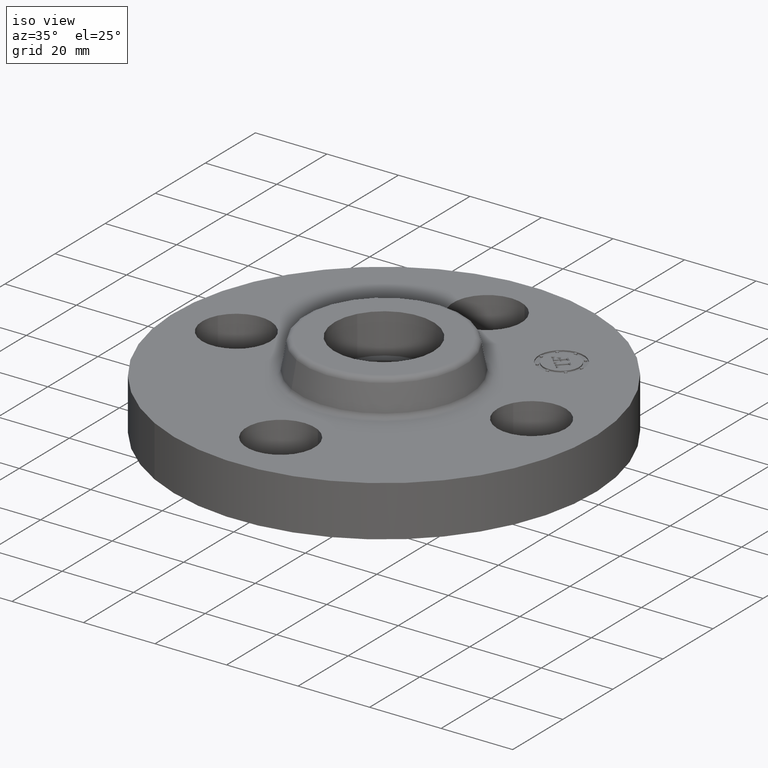
[diagram: clean part render]
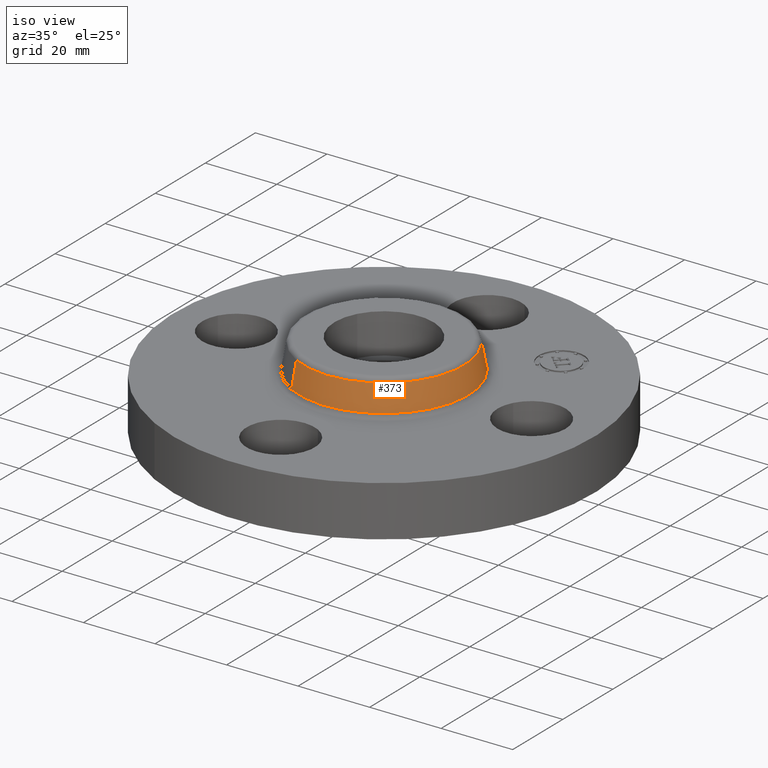
[diagram: same view with one face highlighted and labeled with its STEP entity id]
A machine part, iso view. The second image highlights one B-rep face of the part: STEP entity #373.
In plain terms, the highlighted conical surface has half-angle 10 deg.
Its self-contained STEP definition (entity closure, byte-faithful):
#309=AXIS2_PLACEMENT_3D('Circle Axis2P3D',#307,#308,$) ;
#346=AXIS2_PLACEMENT_3D('Cone Axis2P3D',#343,#344,#345) ;
#357=AXIS2_PLACEMENT_3D('Circle Axis2P3D',#355,#356,$) ;
#304=CARTESIAN_POINT('Vertex',(0.446468634602,0.817255353769,0.609581109342)) ;
#307=CARTESIAN_POINT('Axis2P3D Location',(0.,0.,0.609581109342)) ;
#311=CARTESIAN_POINT('Vertex',(-0.446468634602,-0.817255353769,0.609581109342)) ;
#343=CARTESIAN_POINT('Axis2P3D Location',(0.,0.,0.890418890664)) ;
#348=CARTESIAN_POINT('Line Origine',(0.434598231327,0.795526726323,0.750000000003)) ;
#352=CARTESIAN_POINT('Vertex',(0.422727828052,0.773798098876,0.890418890664)) ;
#355=CARTESIAN_POINT('Axis2P3D Location',(0.,0.,0.890418890664)) ;
#359=CARTESIAN_POINT('Vertex',(-0.422727828052,-0.773798098876,0.890418890664)) ;
#362=CARTESIAN_POINT('Line Origine',(-0.434598231327,-0.795526726323,0.750000000003)) ;
#308=DIRECTION('Axis2P3D Direction',(0.,0.,-0.0393700787402)) ;
#344=DIRECTION('Axis2P3D Direction',(0.,0.,-0.0393700787402)) ;
#345=DIRECTION('Axis2P3D XDirection',(-0.0188750212049,-0.0345504945626,0.)) ;
#349=DIRECTION('Vector Direction',(0.00327761303565,0.00599963041829,-0.03877195878)) ;
#356=DIRECTION('Axis2P3D Direction',(0.,0.,-0.0393700787402)) ;
#363=DIRECTION('Vector Direction',(-0.00327761303565,-0.00599963041829,-0.03877195878)) ;
#350=VECTOR('Line Direction',#349,0.0393700787402) ;
#364=VECTOR('Line Direction',#363,0.0393700787402) ;
#368=ORIENTED_EDGE('',*,*,#313,.F.) ;
#369=ORIENTED_EDGE('',*,*,#354,.T.) ;
#370=ORIENTED_EDGE('',*,*,#361,.T.) ;
#371=ORIENTED_EDGE('',*,*,#366,.F.) ;
#373=ADVANCED_FACE('PartBody',(#372),#347,.T.) ;
#310=CIRCLE('generated circle',#309,0.931257512694) ;
#358=CIRCLE('generated circle',#357,0.881738234644) ;
#347=CONICAL_SURFACE('Cone',#346,0.881738234644,0.174532925199) ;
#313=EDGE_CURVE('',#305,#312,#310,.T.) ;
#354=EDGE_CURVE('',#305,#353,#351,.F.) ;
#361=EDGE_CURVE('',#353,#360,#358,.T.) ;
#366=EDGE_CURVE('',#312,#360,#365,.F.) ;
#367=EDGE_LOOP('',(#368,#369,#370,#371)) ;
#372=FACE_OUTER_BOUND('',#367,.T.) ;
#351=LINE('Line',#348,#350) ;
#365=LINE('Line',#362,#364) ;
#305=VERTEX_POINT('',#304) ;
#312=VERTEX_POINT('',#311) ;
#353=VERTEX_POINT('',#352) ;
#360=VERTEX_POINT('',#359) ;